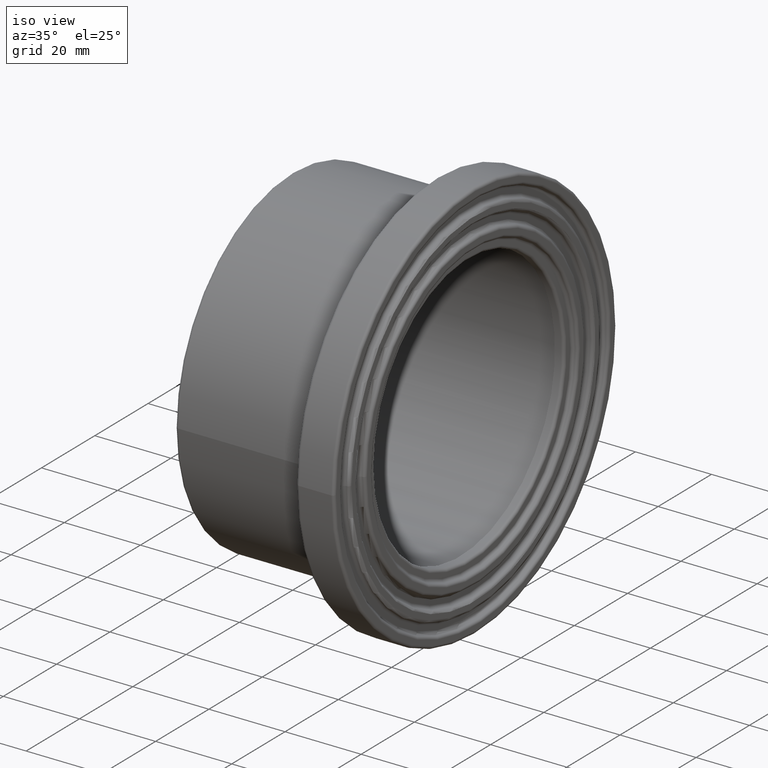
[diagram: clean part render]
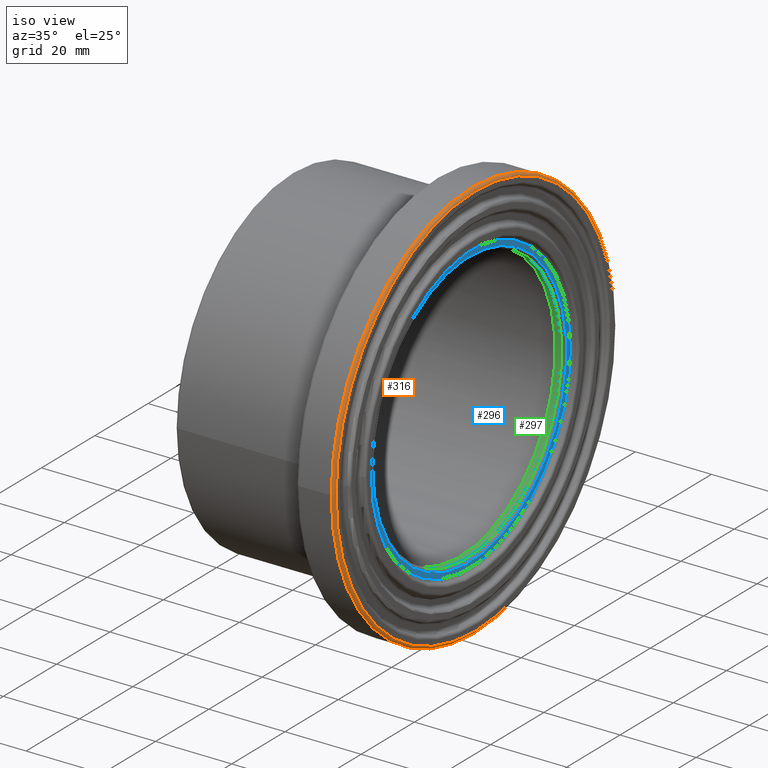
[diagram: same view with three faces highlighted in distinct colors, each labeled with its STEP entity id]
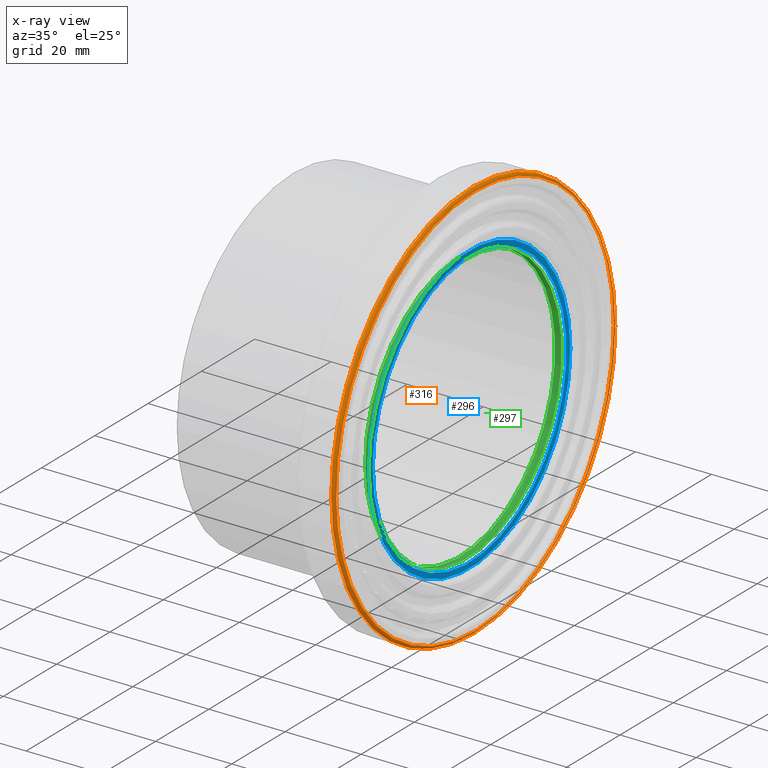
[diagram: x-ray of the same camera — body ghosted, the three highlighted faces saturated]
A machine part, iso view with three faces highlighted in distinct colors.
The next image is the same camera in x-ray (body ghosted, the three faces saturated) — at least one of them is partly hidden behind the body in this view.
Their STEP definitions:

[orange] entity #316 — the highlighted toroidal blend (fillet) surface has major radius 52.25 mm and minor (blend) radius 0.75 mm.
#49=FACE_BOUND('',#127,.T.);
#77=FACE_OUTER_BOUND('',#126,.T.);
#126=EDGE_LOOP('',(#266));
#127=EDGE_LOOP('',(#267));
#149=CIRCLE('',#342,52.25);
#163=CIRCLE('',#370,53.);
#177=VERTEX_POINT('',#522);
#191=VERTEX_POINT('',#564);
#205=EDGE_CURVE('',#177,#177,#149,.T.);
#219=EDGE_CURVE('',#191,#191,#163,.T.);
#266=ORIENTED_EDGE('',*,*,#205,.T.);
#267=ORIENTED_EDGE('',*,*,#219,.T.);
#292=TOROIDAL_SURFACE('',#369,52.25,0.75);
#316=ADVANCED_FACE('',(#77,#49),#292,.T.);
#342=AXIS2_PLACEMENT_3D('',#523,#417,#418);
#369=AXIS2_PLACEMENT_3D('',#563,#471,#472);
#370=AXIS2_PLACEMENT_3D('',#565,#473,#474);
#417=DIRECTION('center_axis',(-1.,0.,0.));
#418=DIRECTION('ref_axis',(0.,1.,6.12323399573677E-17));
#471=DIRECTION('center_axis',(-1.,0.,0.));
#472=DIRECTION('ref_axis',(0.,0.,1.));
#473=DIRECTION('center_axis',(1.,0.,0.));
#474=DIRECTION('ref_axis',(0.,1.,6.12323399573677E-17));
#522=CARTESIAN_POINT('',(48.,-52.25,3.19938976277246E-15));
#523=CARTESIAN_POINT('Origin',(48.,0.,0.));
#563=CARTESIAN_POINT('Origin',(47.25,0.,0.));
#564=CARTESIAN_POINT('',(47.25,-53.,-9.73594205322146E-15));
#565=CARTESIAN_POINT('Origin',(47.25,0.,0.));

[blue] entity #296 — the highlighted planar face has unit normal (1, 0, 0).
#19=PLANE('',#328);
#29=FACE_BOUND('',#87,.T.);
#57=FACE_OUTER_BOUND('',#86,.T.);
#86=EDGE_LOOP('',(#226));
#87=EDGE_LOOP('',(#227));
#141=CIRCLE('',#327,36.375);
#142=CIRCLE('',#329,37.7708333333333);
#169=VERTEX_POINT('',#499);
#170=VERTEX_POINT('',#502);
#197=EDGE_CURVE('',#169,#169,#141,.T.);
#198=EDGE_CURVE('',#170,#170,#142,.T.);
#226=ORIENTED_EDGE('',*,*,#198,.F.);
#227=ORIENTED_EDGE('',*,*,#197,.F.);
#296=ADVANCED_FACE('',(#57,#29),#19,.T.);
#327=AXIS2_PLACEMENT_3D('',#500,#387,#388);
#328=AXIS2_PLACEMENT_3D('',#501,#389,#390);
#329=AXIS2_PLACEMENT_3D('',#503,#391,#392);
#387=DIRECTION('center_axis',(1.,0.,0.));
#388=DIRECTION('ref_axis',(0.,1.,6.12323399573676E-17));
#389=DIRECTION('center_axis',(1.,0.,0.));
#390=DIRECTION('ref_axis',(0.,0.,-1.));
#391=DIRECTION('center_axis',(-1.,0.,0.));
#392=DIRECTION('ref_axis',(0.,1.,6.12323399573677E-17));
#499=CARTESIAN_POINT('',(46.5,-36.375,-6.68197909784775E-15));
#500=CARTESIAN_POINT('Origin',(46.5,0.,0.));
#501=CARTESIAN_POINT('Origin',(46.5,-38.5208333333333,0.));
#502=CARTESIAN_POINT('',(46.5,-37.7708333333333,2.31279650713974E-15));
#503=CARTESIAN_POINT('Origin',(46.5,0.,0.));

[green] entity #297 — the highlighted cylindrical surface (bore or boss wall) has radius 35.625 mm, axis along (-1, 0, 0).
#15=CYLINDRICAL_SURFACE('',#330,35.625);
#30=FACE_BOUND('',#89,.T.);
#58=FACE_OUTER_BOUND('',#88,.T.);
#88=EDGE_LOOP('',(#228));
#89=EDGE_LOOP('',(#229));
#140=CIRCLE('',#326,35.625);
#143=CIRCLE('',#331,35.625);
#168=VERTEX_POINT('',#497);
#171=VERTEX_POINT('',#505);
#196=EDGE_CURVE('',#168,#168,#140,.T.);
#199=EDGE_CURVE('',#171,#171,#143,.T.);
#228=ORIENTED_EDGE('',*,*,#199,.T.);
#229=ORIENTED_EDGE('',*,*,#196,.F.);
#297=ADVANCED_FACE('',(#58,#30),#15,.F.);
#326=AXIS2_PLACEMENT_3D('',#498,#385,#386);
#330=AXIS2_PLACEMENT_3D('',#504,#393,#394);
#331=AXIS2_PLACEMENT_3D('',#506,#395,#396);
#385=DIRECTION('center_axis',(-1.,0.,0.));
#386=DIRECTION('ref_axis',(0.,1.,6.12323399573677E-17));
#393=DIRECTION('center_axis',(-1.,0.,0.));
#394=DIRECTION('ref_axis',(0.,-1.,0.));
#395=DIRECTION('center_axis',(-1.,0.,0.));
#396=DIRECTION('ref_axis',(0.,0.,1.));
#497=CARTESIAN_POINT('',(45.75,-35.625,2.18140211098122E-15));
#498=CARTESIAN_POINT('Origin',(45.75,0.,0.));
#504=CARTESIAN_POINT('Origin',(45.25,0.,0.));
#505=CARTESIAN_POINT('',(44.,-35.625,0.));
#506=CARTESIAN_POINT('Origin',(44.,0.,0.));